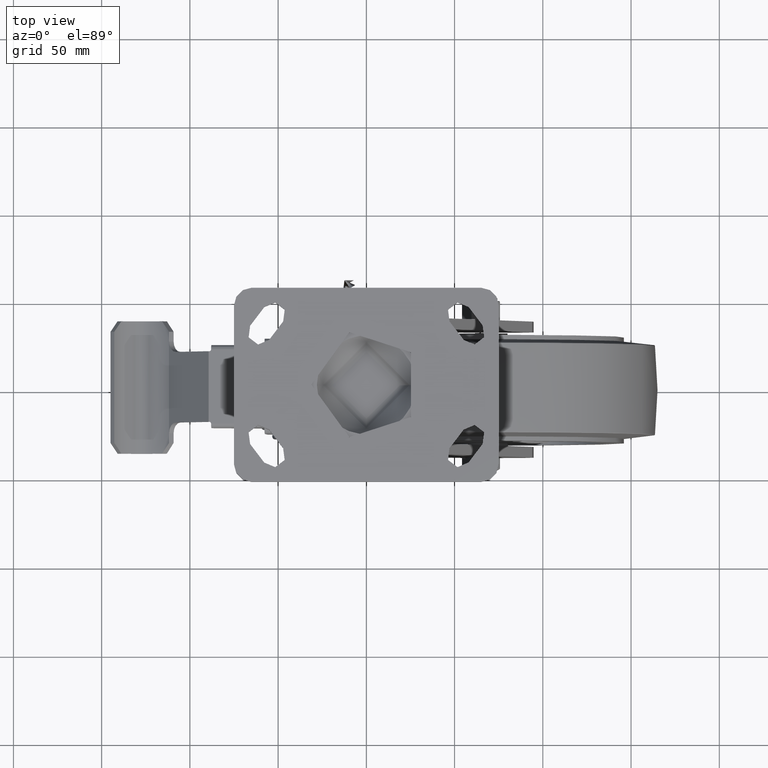
[diagram: clean part render]
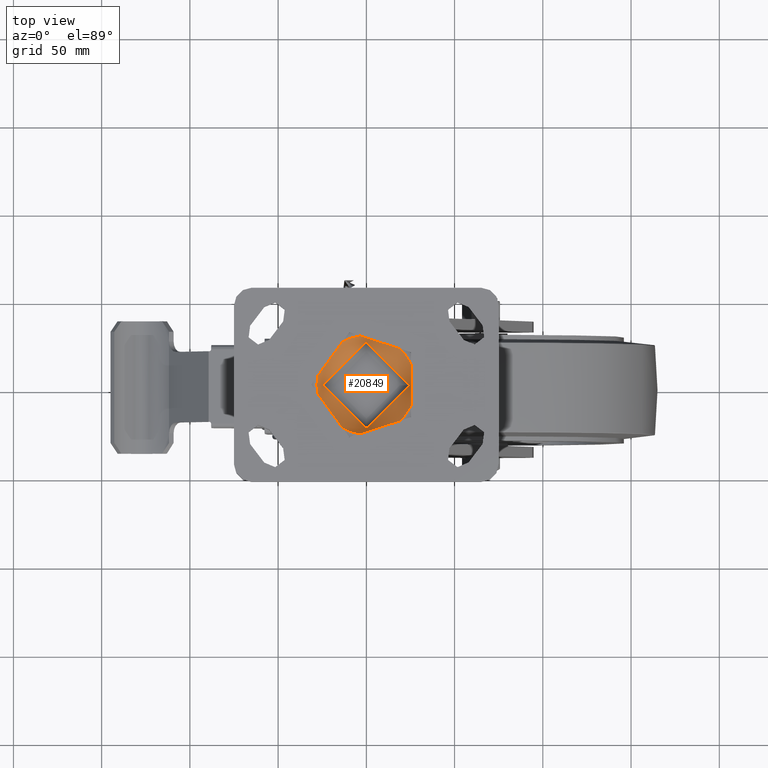
[diagram: same view with one face highlighted and labeled with its STEP entity id]
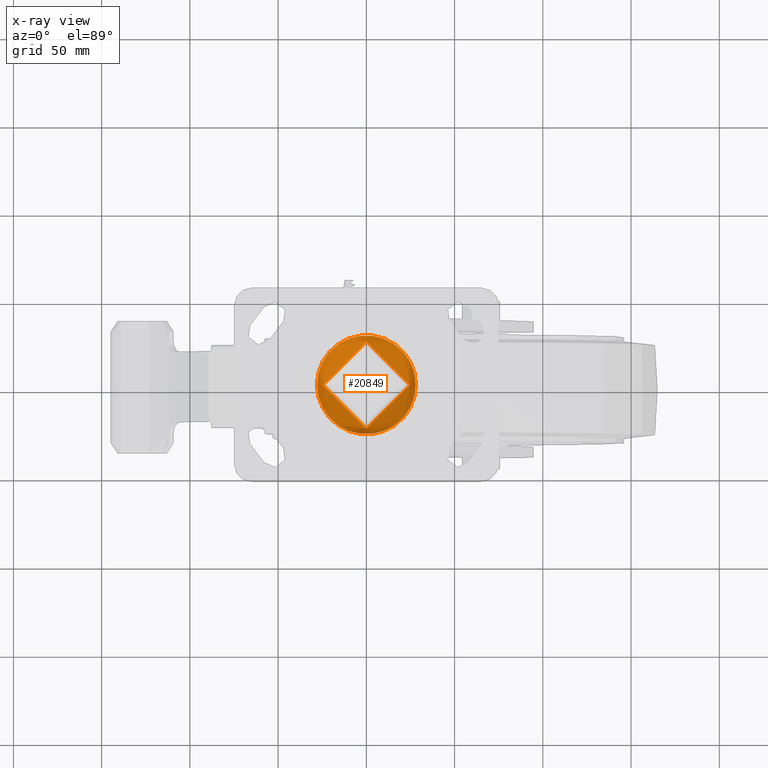
[diagram: x-ray of the same camera — body ghosted, the highlighted face saturated]
A machine part, top view. The second image highlights one B-rep face of the part: STEP entity #20849.
The next image is the same camera in x-ray: the body ghosted, the highlighted face saturated — about 0% of this face is hidden behind the body in this view.
In plain terms, the highlighted conical surface has half-angle 21.038 deg.
Its self-contained STEP definition (entity closure, byte-faithful):
#2297=CONICAL_SURFACE('',#22544,25.5,0.367173833818219);
#2364=FACE_OUTER_BOUND('',#3606,.T.);
#3606=EDGE_LOOP('',(#14125,#14126,#14127,#14128));
#5043=LINE('',#30362,#6476);
#6476=VECTOR('',#24691,25.5);
#7914=CIRCLE('',#22545,24.4792790477488);
#7915=CIRCLE('',#22546,28.);
#8847=VERTEX_POINT('',#30359);
#8848=VERTEX_POINT('',#30361);
#10938=EDGE_CURVE('',#8847,#8847,#7914,.T.);
#10939=EDGE_CURVE('',#8847,#8848,#5043,.T.);
#10940=EDGE_CURVE('',#8848,#8848,#7915,.T.);
#14125=ORIENTED_EDGE('',*,*,#10938,.F.);
#14126=ORIENTED_EDGE('',*,*,#10939,.T.);
#14127=ORIENTED_EDGE('',*,*,#10940,.F.);
#14128=ORIENTED_EDGE('',*,*,#10939,.F.);
#20849=ADVANCED_FACE('',(#2364),#2297,.F.);
#22544=AXIS2_PLACEMENT_3D('',#30358,#24687,#24688);
#22545=AXIS2_PLACEMENT_3D('',#30360,#24689,#24690);
#22546=AXIS2_PLACEMENT_3D('',#30363,#24692,#24693);
#24687=DIRECTION('center_axis',(0.,0.,1.));
#24688=DIRECTION('ref_axis',(-1.,0.,0.));
#24689=DIRECTION('center_axis',(3.54324870555438E-16,3.41308184962474E-33,
1.));
#24690=DIRECTION('ref_axis',(1.,0.,-3.54324870555438E-16));
#24691=DIRECTION('',(0.358979079308869,4.3962258043647E-17,0.93334560620306));
#24692=DIRECTION('center_axis',(0.,0.,-1.));
#24693=DIRECTION('ref_axis',(-1.,0.,0.));
#30358=CARTESIAN_POINT('Origin',(0.,0.,-10.5));
#30359=CARTESIAN_POINT('',(24.4792790477488,2.99784707312604E-15,-13.1538744758532));
#30360=CARTESIAN_POINT('Origin',(-1.73472347597681E-15,-2.99784707312604E-15,
-13.1538744758532));
#30361=CARTESIAN_POINT('',(28.,3.42901103761259E-15,-3.99999999999999));
#30362=CARTESIAN_POINT('',(25.5,3.12284933782575E-15,-10.5));
#30363=CARTESIAN_POINT('Origin',(0.,0.,-3.99999999999999));